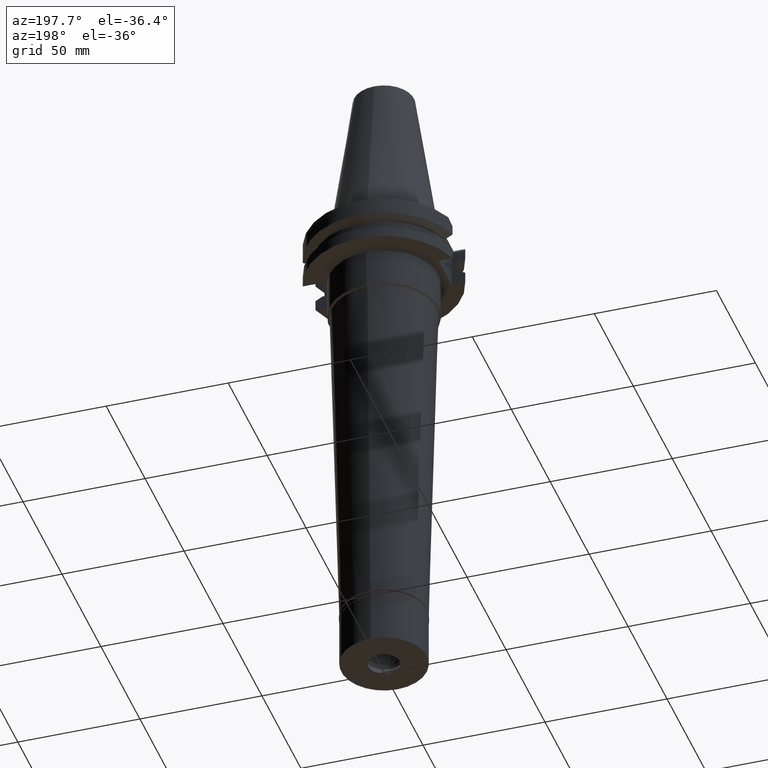
[diagram: clean part render]
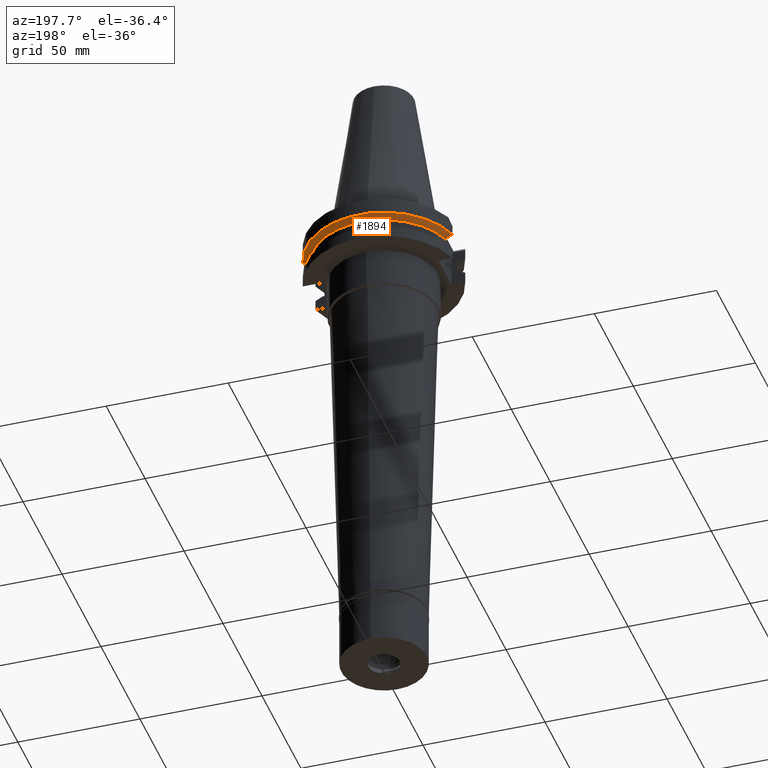
[diagram: same view with one face highlighted and labeled with its STEP entity id]
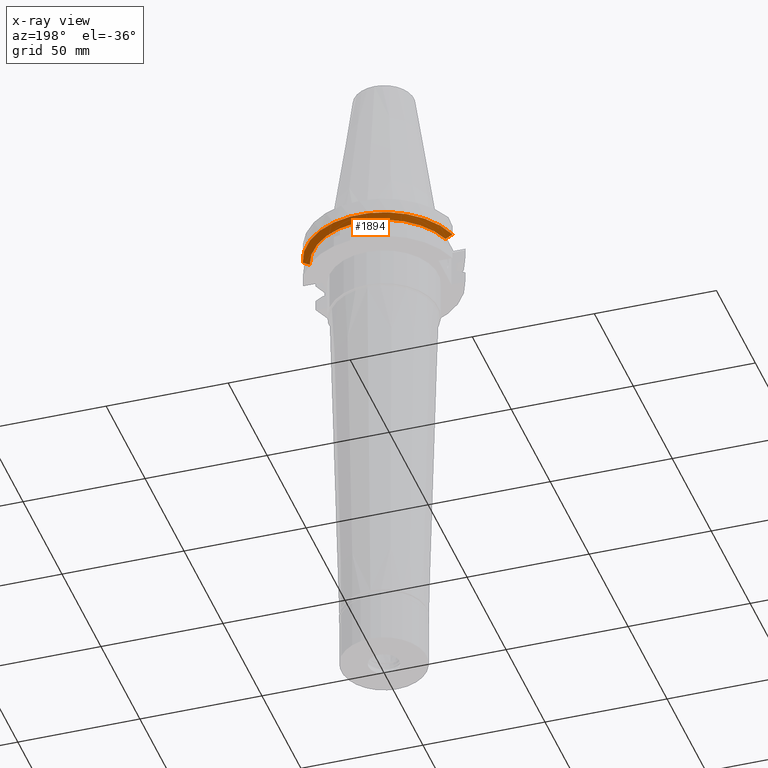
[diagram: x-ray of the same camera — body ghosted, the highlighted face saturated]
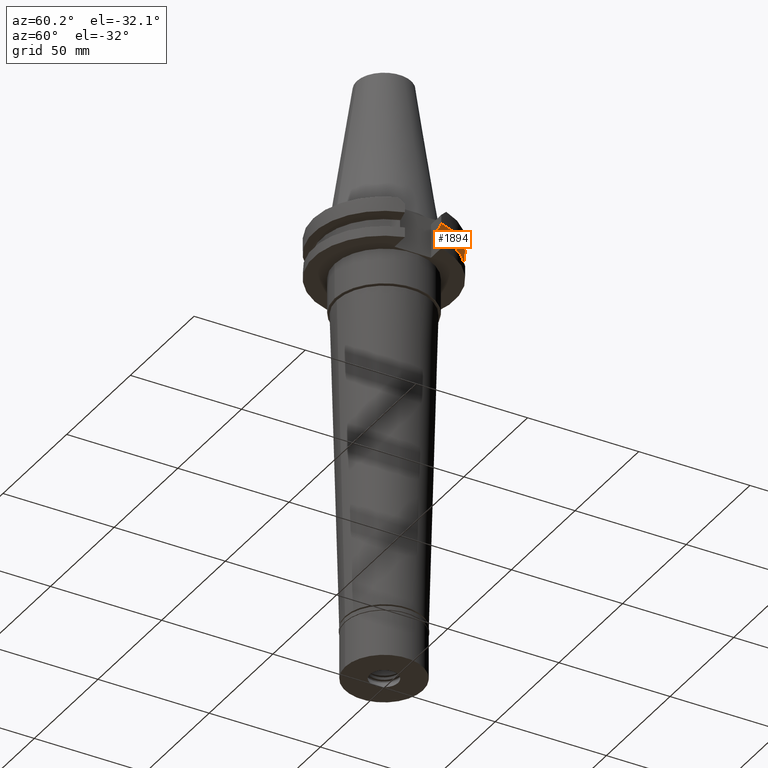
[diagram: same view with one face highlighted and labeled with its STEP entity id]
A machine part, auxiliary view. The second image highlights one B-rep face of the part: STEP entity #1894.
The next image is the same camera in x-ray: the body ghosted, the highlighted face saturated — about 0% of this face is hidden behind the body in this view.
A second angle (auxiliary view) of the same face is appended — the face is thin or edge-on in the first view.
In plain terms, the highlighted conical surface has half-angle 60 deg.
Its self-contained STEP definition (entity closure, byte-faithful):
#92 = CARTESIAN_POINT ( 'NONE',  ( 27.79399588427999745, 8.189999365899998551, -9.210000000000999165 ) ) ;
#105 = VERTEX_POINT ( 'NONE', #3228 ) ;
#384 = CARTESIAN_POINT ( 'NONE',  ( 0.0000000000000000000, 1.121665249527999917E-14, -7.608163357944999206 ) ) ;
#465 = DIRECTION ( 'NONE',  ( 0.0000000000000000000, 0.0000000000000000000, 1.000000000000000000 ) ) ;
#477 = CARTESIAN_POINT ( 'NONE',  ( -27.79398348482000003, 8.190000189175000500, -9.210000000000999165 ) ) ;
#483 = EDGE_LOOP ( 'NONE', ( #1767, #2523, #1546, #2257 ) ) ;
#738 = AXIS2_PLACEMENT_3D ( 'NONE', #1989, #2504, #1472 ) ;
#946 = CONICAL_SURFACE ( 'NONE', #738, 30.36276877526999840, 1.047197551196400456 ) ;
#1027 = B_SPLINE_CURVE_WITH_KNOTS ( 'NONE', 3,
 ( #2721, #1610, #1115, #2704 ),
 .UNSPECIFIED., .F., .F.,
 ( 4, 4 ),
 ( 0.0000000000000000000, 1.000000000000000000 ),
 .UNSPECIFIED. ) ;
#1115 = CARTESIAN_POINT ( 'NONE',  ( 28.71170969509163839, 8.189998730403164728, -8.701758253036681268 ) ) ;
#1191 = FACE_OUTER_BOUND ( 'NONE', #483, .T. ) ;
#1201 = CARTESIAN_POINT ( 'NONE',  ( -29.67220490029862034, 8.190001201864017588, -8.167813437756086259 ) ) ;
#1261 = EDGE_CURVE ( 'NONE', #105, #1275, #1027, .T. ) ;
#1275 = VERTEX_POINT ( 'NONE', #92 ) ;
#1405 = DIRECTION ( 'NONE',  ( 0.0000000000000000000, 0.0000000000000000000, 1.000000000000000000 ) ) ;
#1472 = DIRECTION ( 'NONE',  ( 0.0000000000000000000, 1.000000000000000000, 0.0000000000000000000 ) ) ;
#1528 = CARTESIAN_POINT ( 'NONE',  ( -28.71170642078588386, 8.190000378777559931, -8.701759819570268562 ) ) ;
#1546 = ORIENTED_EDGE ( 'NONE', *, *, #3372, .T. ) ;
#1599 = VERTEX_POINT ( 'NONE', #2030 ) ;
#1610 = CARTESIAN_POINT ( 'NONE',  ( 29.67220411597960350, 8.189999750685567292, -8.167814094916428402 ) ) ;
#1767 = ORIENTED_EDGE ( 'NONE', *, *, #1261, .T. ) ;
#1880 = CIRCLE ( 'NONE', #2382, 28.97553755052999946 ) ;
#1894 = ADVANCED_FACE ( 'NONE', ( #1191 ), #946, .T. ) ;
#1989 = CARTESIAN_POINT ( 'NONE',  ( 0.0000000000000000000, 1.121665249527999917E-14, -8.409081678974001051 ) ) ;
#2030 = CARTESIAN_POINT ( 'NONE',  ( -27.79398348482000003, 8.190000189175000500, -9.210000000000999165 ) ) ;
#2064 = EDGE_CURVE ( 'NONE', #1275, #1599, #1880, .T. ) ;
#2250 = B_SPLINE_CURVE_WITH_KNOTS ( 'NONE', 3,
 ( #477, #1528, #1201, #2286 ),
 .UNSPECIFIED., .F., .F.,
 ( 4, 4 ),
 ( 0.0000000000000000000, 1.000000000000000000 ),
 .UNSPECIFIED. ) ;
#2257 = ORIENTED_EDGE ( 'NONE', *, *, #2802, .F. ) ;
#2286 = CARTESIAN_POINT ( 'NONE',  ( -30.67550146538999911, 8.190000601148000214, -7.608157985709000037 ) ) ;
#2382 = AXIS2_PLACEMENT_3D ( 'NONE', #2810, #465, #3249 ) ;
#2396 = VERTEX_POINT ( 'NONE', #3129 ) ;
#2504 = DIRECTION ( 'NONE',  ( 0.0000000000000000000, 0.0000000000000000000, 1.000000000000000000 ) ) ;
#2523 = ORIENTED_EDGE ( 'NONE', *, *, #2064, .T. ) ;
#2616 = CIRCLE ( 'NONE', #3059, 31.74999999999998579 ) ;
#2704 = CARTESIAN_POINT ( 'NONE',  ( 27.79399588427999745, 8.189999365899998551, -9.210000000000999165 ) ) ;
#2721 = CARTESIAN_POINT ( 'NONE',  ( 30.67550165918999738, 8.189999875296001264, -7.608164472358999397 ) ) ;
#2745 = DIRECTION ( 'NONE',  ( 0.9661575315241073270, 0.2579527559055020958, 0.0000000000000000000 ) ) ;
#2802 = EDGE_CURVE ( 'NONE', #105, #2396, #2616, .T. ) ;
#2810 = CARTESIAN_POINT ( 'NONE',  ( 0.0000000000000000000, 1.121665249527999917E-14, -9.210000000002999343 ) ) ;
#3059 = AXIS2_PLACEMENT_3D ( 'NONE', #384, #1405, #2745 ) ;
#3129 = CARTESIAN_POINT ( 'NONE',  ( -30.67550146538999911, 8.190000601148000214, -7.608157985709000037 ) ) ;
#3228 = CARTESIAN_POINT ( 'NONE',  ( 30.67550165918999738, 8.189999875296001264, -7.608164472358999397 ) ) ;
#3249 = DIRECTION ( 'NONE',  ( 0.0000000000000000000, 1.000000000000000000, 0.0000000000000000000 ) ) ;
#3372 = EDGE_CURVE ( 'NONE', #1599, #2396, #2250, .T. ) ;